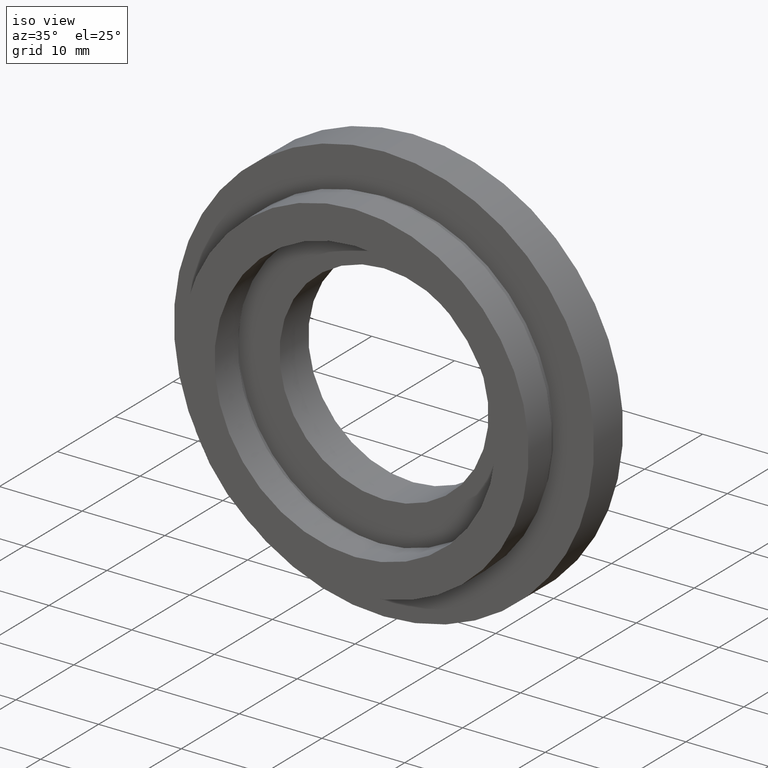
[diagram: clean part render]
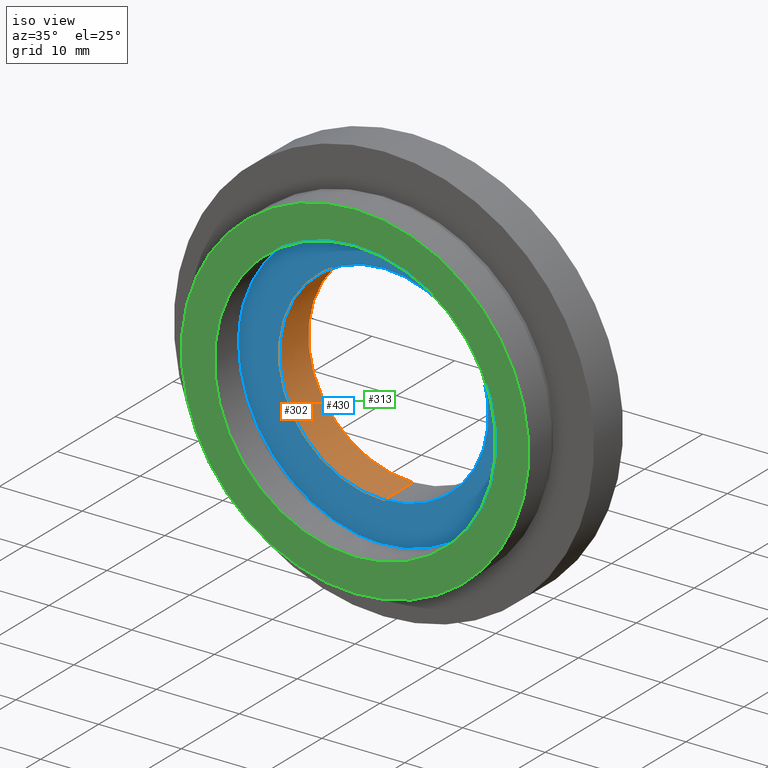
[diagram: same view with three faces highlighted in distinct colors, each labeled with its STEP entity id]
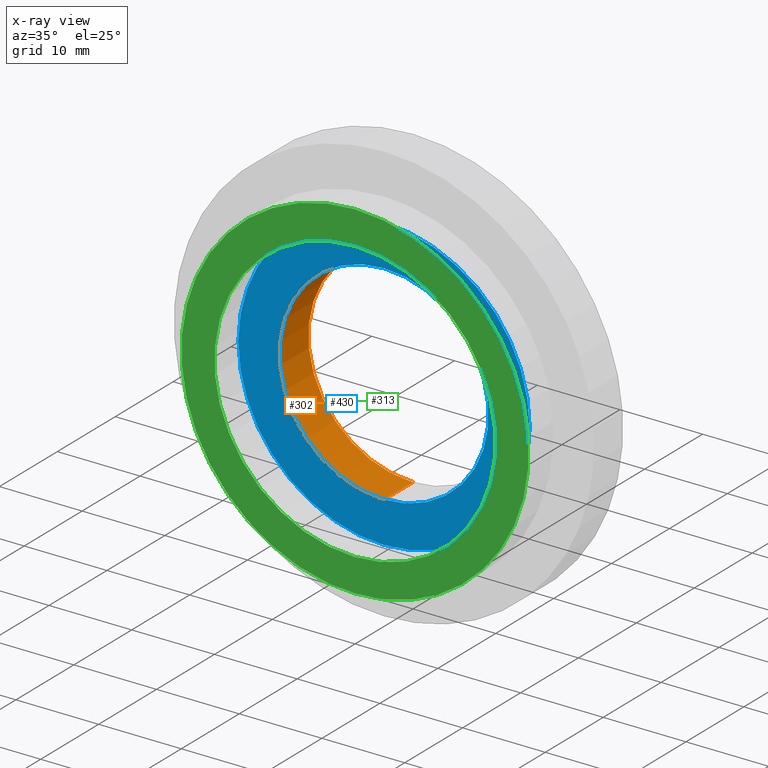
[diagram: x-ray of the same camera — body ghosted, the three highlighted faces saturated]
A machine part, iso view with three faces highlighted in distinct colors.
The next image is the same camera in x-ray (body ghosted, the three faces saturated) — at least one of them is partly hidden behind the body in this view.
Their STEP definitions:

[orange] entity #302 — the highlighted cylindrical surface (partial cylindrical patch) has radius 12.645 mm, axis along (-0, 1, -0).
#2 = CARTESIAN_POINT ( 'NONE',  ( 0.0000000000000000000, 10.00000000000000000, 0.0000000000000000000 ) ) ;
#15 = ORIENTED_EDGE ( 'NONE', *, *, #209, .F. ) ;
#17 = FACE_OUTER_BOUND ( 'NONE', #412, .T. ) ;
#18 = AXIS2_PLACEMENT_3D ( 'NONE', #2, #624, #59 ) ;
#26 = VERTEX_POINT ( 'NONE', #142 ) ;
#35 = EDGE_CURVE ( 'NONE', #220, #266, #114, .T. ) ;
#47 = CYLINDRICAL_SURFACE ( 'NONE', #314, 12.64500000000000100 ) ;
#51 = CARTESIAN_POINT ( 'NONE',  ( 0.0000000000000000000, 13.74468085106383300, 12.64500000000000100 ) ) ;
#54 = AXIS2_PLACEMENT_3D ( 'NONE', #229, #74, #235 ) ;
#59 = DIRECTION ( 'NONE',  ( 0.0000000000000000000, 0.0000000000000000000, 1.000000000000000000 ) ) ;
#65 = CARTESIAN_POINT ( 'NONE',  ( 1.548565877521828400E-015, 10.00000000000000000, -12.64500000000000100 ) ) ;
#72 = CARTESIAN_POINT ( 'NONE',  ( 0.0000000000000000000, 13.74468085106383300, 0.0000000000000000000 ) ) ;
#74 = DIRECTION ( 'NONE',  ( -0.0000000000000000000, 1.000000000000000000, -0.0000000000000000000 ) ) ;
#114 = CIRCLE ( 'NONE', #18, 12.64500000000000100 ) ;
#142 = CARTESIAN_POINT ( 'NONE',  ( 0.0000000000000000000, 4.999999999999999100, 12.64500000000000100 ) ) ;
#169 = VECTOR ( 'NONE', #241, 1000.000000000000000 ) ;
#190 = EDGE_CURVE ( 'NONE', #210, #220, #219, .T. ) ;
#198 = ORIENTED_EDGE ( 'NONE', *, *, #190, .T. ) ;
#199 = DIRECTION ( 'NONE',  ( 0.0000000000000000000, 0.0000000000000000000, 1.000000000000000000 ) ) ;
#202 = CARTESIAN_POINT ( 'NONE',  ( 0.0000000000000000000, 10.00000000000000000, 12.64500000000000100 ) ) ;
#209 = EDGE_CURVE ( 'NONE', #26, #266, #502, .T. ) ;
#210 = VERTEX_POINT ( 'NONE', #517 ) ;
#219 = LINE ( 'NONE', #336, #594 ) ;
#220 = VERTEX_POINT ( 'NONE', #65 ) ;
#228 = ORIENTED_EDGE ( 'NONE', *, *, #583, .F. ) ;
#229 = CARTESIAN_POINT ( 'NONE',  ( 0.0000000000000000000, 4.999999999999999100, 0.0000000000000000000 ) ) ;
#235 = DIRECTION ( 'NONE',  ( 0.0000000000000000000, 0.0000000000000000000, 1.000000000000000000 ) ) ;
#241 = DIRECTION ( 'NONE',  ( -0.0000000000000000000, 1.000000000000000000, -0.0000000000000000000 ) ) ;
#259 = CIRCLE ( 'NONE', #54, 12.64500000000000100 ) ;
#266 = VERTEX_POINT ( 'NONE', #202 ) ;
#302 = ADVANCED_FACE ( 'NONE', ( #17 ), #47, .F. ) ;
#314 = AXIS2_PLACEMENT_3D ( 'NONE', #72, #555, #199 ) ;
#336 = CARTESIAN_POINT ( 'NONE',  ( 1.548565877521828400E-015, 13.74468085106383300, -12.64500000000000100 ) ) ;
#412 = EDGE_LOOP ( 'NONE', ( #228, #198, #432, #15 ) ) ;
#432 = ORIENTED_EDGE ( 'NONE', *, *, #35, .T. ) ;
#502 = LINE ( 'NONE', #51, #169 ) ;
#509 = DIRECTION ( 'NONE',  ( -0.0000000000000000000, 1.000000000000000000, -0.0000000000000000000 ) ) ;
#517 = CARTESIAN_POINT ( 'NONE',  ( 1.548565877521828400E-015, 4.999999999999999100, -12.64500000000000100 ) ) ;
#555 = DIRECTION ( 'NONE',  ( -0.0000000000000000000, 1.000000000000000000, -0.0000000000000000000 ) ) ;
#583 = EDGE_CURVE ( 'NONE', #210, #26, #259, .T. ) ;
#594 = VECTOR ( 'NONE', #509, 1000.000000000000000 ) ;
#624 = DIRECTION ( 'NONE',  ( -0.0000000000000000000, 1.000000000000000000, -0.0000000000000000000 ) ) ;

[blue] entity #430 — the highlighted planar face has unit normal (-0, 1, 0).
#26 = VERTEX_POINT ( 'NONE', #142 ) ;
#36 = CARTESIAN_POINT ( 'NONE',  ( 0.0000000000000000000, 4.999999999999999100, 17.60000000000000100 ) ) ;
#54 = AXIS2_PLACEMENT_3D ( 'NONE', #229, #74, #235 ) ;
#62 = CARTESIAN_POINT ( 'NONE',  ( 0.0000000000000000000, 4.999999999999999100, 0.0000000000000000000 ) ) ;
#66 = DIRECTION ( 'NONE',  ( 0.0000000000000000000, 0.0000000000000000000, 1.000000000000000000 ) ) ;
#74 = DIRECTION ( 'NONE',  ( -0.0000000000000000000, 1.000000000000000000, -0.0000000000000000000 ) ) ;
#108 = DIRECTION ( 'NONE',  ( -0.0000000000000000000, 1.000000000000000000, -0.0000000000000000000 ) ) ;
#142 = CARTESIAN_POINT ( 'NONE',  ( 0.0000000000000000000, 4.999999999999999100, 12.64500000000000100 ) ) ;
#197 = DIRECTION ( 'NONE',  ( 0.0000000000000000000, 0.0000000000000000000, 1.000000000000000000 ) ) ;
#210 = VERTEX_POINT ( 'NONE', #517 ) ;
#217 = CIRCLE ( 'NONE', #613, 12.64500000000000100 ) ;
#222 = CARTESIAN_POINT ( 'NONE',  ( 17.60000000000000100, 4.999999999999999100, 0.0000000000000000000 ) ) ;
#229 = CARTESIAN_POINT ( 'NONE',  ( 0.0000000000000000000, 4.999999999999999100, 0.0000000000000000000 ) ) ;
#235 = DIRECTION ( 'NONE',  ( 0.0000000000000000000, 0.0000000000000000000, 1.000000000000000000 ) ) ;
#250 = PLANE ( 'NONE',  #546 ) ;
#259 = CIRCLE ( 'NONE', #54, 12.64500000000000100 ) ;
#296 = AXIS2_PLACEMENT_3D ( 'NONE', #62, #589, #535 ) ;
#321 = VERTEX_POINT ( 'NONE', #384 ) ;
#332 = EDGE_LOOP ( 'NONE', ( #367, #396 ) ) ;
#367 = ORIENTED_EDGE ( 'NONE', *, *, #499, .F. ) ;
#372 = DIRECTION ( 'NONE',  ( -0.0000000000000000000, 1.000000000000000000, -0.0000000000000000000 ) ) ;
#384 = CARTESIAN_POINT ( 'NONE',  ( 2.155378366499341600E-015, 4.999999999999999100, -17.60000000000000100 ) ) ;
#386 = VERTEX_POINT ( 'NONE', #36 ) ;
#396 = ORIENTED_EDGE ( 'NONE', *, *, #449, .F. ) ;
#418 = CIRCLE ( 'NONE', #547, 17.60000000000000100 ) ;
#430 = ADVANCED_FACE ( 'NONE', ( #585, #582 ), #250, .F. ) ;
#449 = EDGE_CURVE ( 'NONE', #321, #386, #508, .T. ) ;
#458 = ORIENTED_EDGE ( 'NONE', *, *, #583, .T. ) ;
#499 = EDGE_CURVE ( 'NONE', #386, #321, #418, .T. ) ;
#505 = DIRECTION ( 'NONE',  ( 0.0000000000000000000, 0.0000000000000000000, 1.000000000000000000 ) ) ;
#508 = CIRCLE ( 'NONE', #296, 17.60000000000000100 ) ;
#517 = CARTESIAN_POINT ( 'NONE',  ( 1.548565877521828400E-015, 4.999999999999999100, -12.64500000000000100 ) ) ;
#535 = DIRECTION ( 'NONE',  ( 0.0000000000000000000, 0.0000000000000000000, 1.000000000000000000 ) ) ;
#542 = EDGE_LOOP ( 'NONE', ( #620, #458 ) ) ;
#543 = EDGE_CURVE ( 'NONE', #26, #210, #217, .T. ) ;
#546 = AXIS2_PLACEMENT_3D ( 'NONE', #222, #606, #66 ) ;
#547 = AXIS2_PLACEMENT_3D ( 'NONE', #551, #372, #505 ) ;
#551 = CARTESIAN_POINT ( 'NONE',  ( 0.0000000000000000000, 4.999999999999999100, 0.0000000000000000000 ) ) ;
#574 = CARTESIAN_POINT ( 'NONE',  ( 0.0000000000000000000, 4.999999999999999100, 0.0000000000000000000 ) ) ;
#582 = FACE_BOUND ( 'NONE', #542, .T. ) ;
#583 = EDGE_CURVE ( 'NONE', #210, #26, #259, .T. ) ;
#585 = FACE_OUTER_BOUND ( 'NONE', #332, .T. ) ;
#589 = DIRECTION ( 'NONE',  ( -0.0000000000000000000, 1.000000000000000000, -0.0000000000000000000 ) ) ;
#606 = DIRECTION ( 'NONE',  ( -0.0000000000000000000, 1.000000000000000000, 0.0000000000000000000 ) ) ;
#613 = AXIS2_PLACEMENT_3D ( 'NONE', #574, #108, #197 ) ;
#620 = ORIENTED_EDGE ( 'NONE', *, *, #543, .T. ) ;

[green] entity #313 — the highlighted planar face has unit normal (-0, 1, 0).
#4 = CARTESIAN_POINT ( 'NONE',  ( 0.0000000000000000000, 0.0000000000000000000, 0.0000000000000000000 ) ) ;
#6 = DIRECTION ( 'NONE',  ( -0.0000000000000000000, 1.000000000000000000, -0.0000000000000000000 ) ) ;
#10 = ORIENTED_EDGE ( 'NONE', *, *, #144, .F. ) ;
#19 = CIRCLE ( 'NONE', #109, 21.00000000000000000 ) ;
#30 = FACE_OUTER_BOUND ( 'NONE', #356, .T. ) ;
#41 = CARTESIAN_POINT ( 'NONE',  ( 2.571758278209441700E-015, 0.0000000000000000000, -21.00000000000000000 ) ) ;
#42 = FACE_BOUND ( 'NONE', #467, .T. ) ;
#55 = EDGE_CURVE ( 'NONE', #443, #587, #19, .T. ) ;
#82 = EDGE_CURVE ( 'NONE', #294, #267, #106, .T. ) ;
#98 = DIRECTION ( 'NONE',  ( 0.0000000000000000000, 0.0000000000000000000, 1.000000000000000000 ) ) ;
#100 = DIRECTION ( 'NONE',  ( -0.0000000000000000000, 1.000000000000000000, 0.0000000000000000000 ) ) ;
#106 = CIRCLE ( 'NONE', #280, 17.00000000000000000 ) ;
#109 = AXIS2_PLACEMENT_3D ( 'NONE', #4, #6, #98 ) ;
#140 = ORIENTED_EDGE ( 'NONE', *, *, #55, .F. ) ;
#144 = EDGE_CURVE ( 'NONE', #587, #443, #174, .T. ) ;
#156 = ORIENTED_EDGE ( 'NONE', *, *, #82, .T. ) ;
#159 = DIRECTION ( 'NONE',  ( 0.0000000000000000000, 0.0000000000000000000, 1.000000000000000000 ) ) ;
#174 = CIRCLE ( 'NONE', #175, 21.00000000000000000 ) ;
#175 = AXIS2_PLACEMENT_3D ( 'NONE', #573, #566, #184 ) ;
#177 = CARTESIAN_POINT ( 'NONE',  ( 0.0000000000000000000, 0.0000000000000000000, 17.00000000000000000 ) ) ;
#184 = DIRECTION ( 'NONE',  ( 0.0000000000000000000, 0.0000000000000000000, 1.000000000000000000 ) ) ;
#193 = PLANE ( 'NONE',  #212 ) ;
#200 = CARTESIAN_POINT ( 'NONE',  ( 0.0000000000000000000, 0.0000000000000000000, 21.00000000000000000 ) ) ;
#212 = AXIS2_PLACEMENT_3D ( 'NONE', #339, #100, #371 ) ;
#215 = CARTESIAN_POINT ( 'NONE',  ( 0.0000000000000000000, 0.0000000000000000000, 0.0000000000000000000 ) ) ;
#225 = DIRECTION ( 'NONE',  ( 0.0000000000000000000, 0.0000000000000000000, 1.000000000000000000 ) ) ;
#244 = ORIENTED_EDGE ( 'NONE', *, *, #490, .T. ) ;
#267 = VERTEX_POINT ( 'NONE', #319 ) ;
#280 = AXIS2_PLACEMENT_3D ( 'NONE', #215, #421, #159 ) ;
#294 = VERTEX_POINT ( 'NONE', #177 ) ;
#313 = ADVANCED_FACE ( 'NONE', ( #30, #42 ), #193, .F. ) ;
#319 = CARTESIAN_POINT ( 'NONE',  ( 2.081899558550500300E-015, 0.0000000000000000000, -17.00000000000000000 ) ) ;
#339 = CARTESIAN_POINT ( 'NONE',  ( 21.00000000000000000, -4.286263797015736600E-016, 0.0000000000000000000 ) ) ;
#356 = EDGE_LOOP ( 'NONE', ( #140, #10 ) ) ;
#371 = DIRECTION ( 'NONE',  ( 0.0000000000000000000, 0.0000000000000000000, 1.000000000000000000 ) ) ;
#421 = DIRECTION ( 'NONE',  ( -0.0000000000000000000, 1.000000000000000000, -0.0000000000000000000 ) ) ;
#424 = DIRECTION ( 'NONE',  ( -0.0000000000000000000, 1.000000000000000000, -0.0000000000000000000 ) ) ;
#427 = CIRCLE ( 'NONE', #455, 17.00000000000000000 ) ;
#443 = VERTEX_POINT ( 'NONE', #200 ) ;
#455 = AXIS2_PLACEMENT_3D ( 'NONE', #537, #424, #225 ) ;
#467 = EDGE_LOOP ( 'NONE', ( #156, #244 ) ) ;
#490 = EDGE_CURVE ( 'NONE', #267, #294, #427, .T. ) ;
#537 = CARTESIAN_POINT ( 'NONE',  ( 0.0000000000000000000, 0.0000000000000000000, 0.0000000000000000000 ) ) ;
#566 = DIRECTION ( 'NONE',  ( -0.0000000000000000000, 1.000000000000000000, -0.0000000000000000000 ) ) ;
#573 = CARTESIAN_POINT ( 'NONE',  ( 0.0000000000000000000, 0.0000000000000000000, 0.0000000000000000000 ) ) ;
#587 = VERTEX_POINT ( 'NONE', #41 ) ;